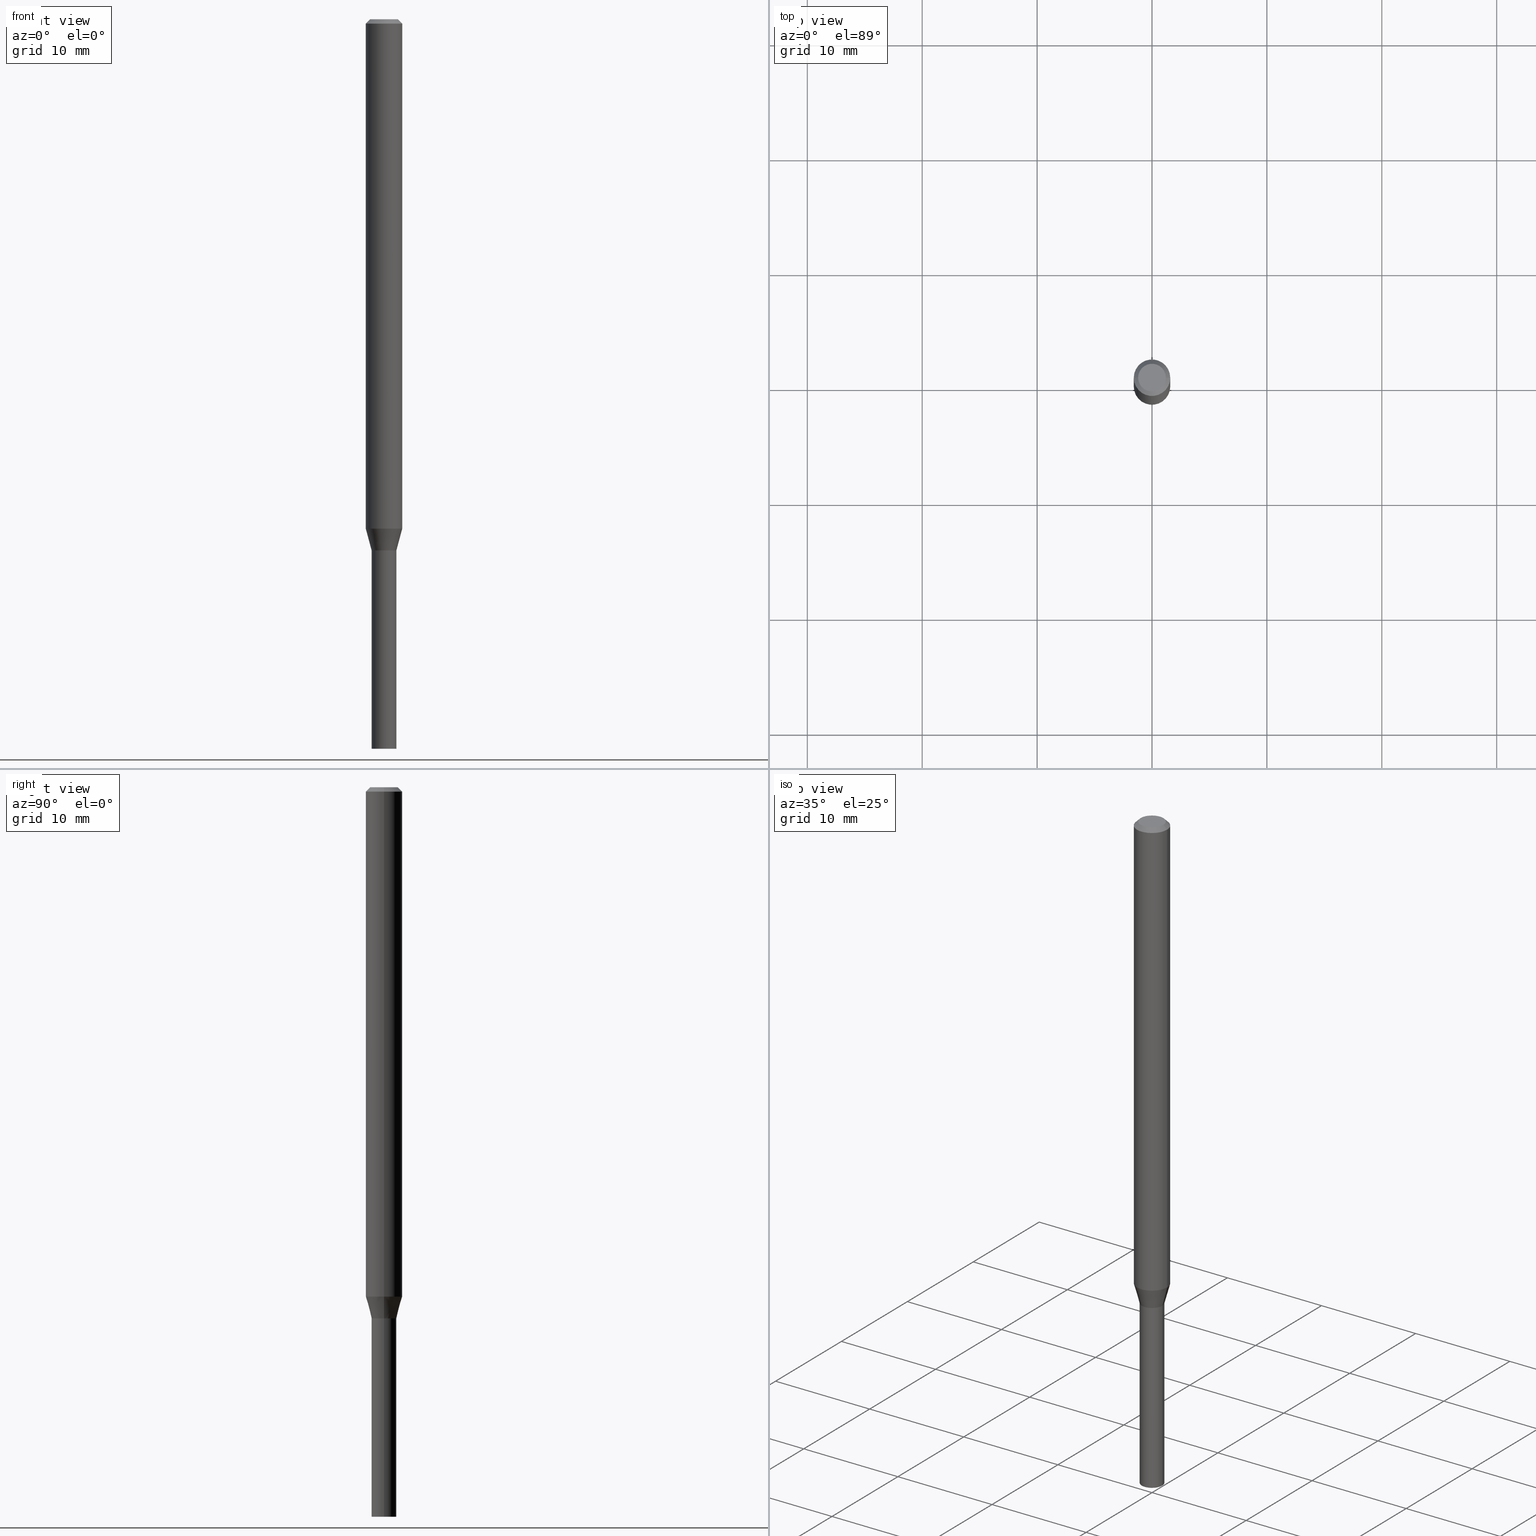
[diagram: canonical four-view strip — front | top / right | iso, engineering-drawing reading convention]
A machine part, canonical four-view strip (front | top / right | iso — engineering-drawing reading convention). The complete STEP part file that produces these views, byte-faithful:
ISO-10303-21;
HEADER;
FILE_DESCRIPTION (( 'STEP AP203' ),
    '1' );
FILE_NAME ('01274.STEP',
    '2024-03-20T00:52:21',
    ( '' ),
    ( '' ),
    'SwSTEP 2.0',
    'SolidWorks 2023',
    '' );
FILE_SCHEMA (( 'CONFIG_CONTROL_DESIGN' ));
ENDSEC;

DATA;
#1 = FACE_OUTER_BOUND ( 'NONE', #41, .T. ) ;
#2 = AXIS2_PLACEMENT_3D ( 'NONE', #100, #132, #173 ) ;
#3 = CARTESIAN_POINT ( 'NONE',  ( -0.04250000000000019734, -6.050769633327060681E-15, -1.819500000000000339 ) ) ;
#4 =( NAMED_UNIT ( * ) SI_UNIT ( $, .STERADIAN. ) SOLID_ANGLE_UNIT ( ) );
#5 = EDGE_LOOP ( 'NONE', ( #101, #324, #272, #439 ) ) ;
#6 = DIRECTION ( 'NONE',  ( 0.7071067811869518049, -2.468850131086492060E-15, 0.7071067811861430075 ) ) ;
#7 = ORIENTED_EDGE ( 'NONE', *, *, #261, .T. ) ;
#8 = DIRECTION ( 'NONE',  ( 1.000000000000000000, -6.982962677686261977E-15, 0.000000000000000000 ) ) ;
#9 = APPROVAL_STATUS ( 'not_yet_approved' ) ;
#10 = ORIENTED_EDGE ( 'NONE', *, *, #379, .T. ) ;
#11 = ADVANCED_FACE ( 'NONE', ( #1 ), #449, .T. ) ;
#12 = PERSON_AND_ORGANIZATION_ROLE ( 'design_owner' ) ;
#13 = ORIENTED_EDGE ( 'NONE', *, *, #396, .F. ) ;
#14 = DIRECTION ( 'NONE',  ( 1.000000000000000000, -6.982962677686261977E-15, 0.000000000000000000 ) ) ;
#15 = CLOSED_SHELL ( 'NONE', ( #17, #309, #450, #195, #435, #401, #11, #341, #67, #429, #276, #226 ) ) ;
#16 = LOCAL_TIME ( 20, 52, 21.00000000000000000, #189 ) ;
#17 = ADVANCED_FACE ( 'NONE', ( #187 ), #322, .F. ) ;
#18 =( CONVERSION_BASED_UNIT ( 'INCH', #335 ) LENGTH_UNIT ( ) NAMED_UNIT ( #305 ) );
#19 = VERTEX_POINT ( 'NONE', #254 ) ;
#20 = AXIS2_PLACEMENT_3D ( 'NONE', #138, #441, #8 ) ;
#21 = DIRECTION ( 'NONE',  ( 1.000000000000000000, -6.982962677686267499E-15, 4.884662768193073002E-29 ) ) ;
#22 = CC_DESIGN_PERSON_AND_ORGANIZATION_ASSIGNMENT ( #286, #12, ( #331 ) ) ;
#23 = AXIS2_PLACEMENT_3D ( 'NONE', #74, #437, #186 ) ;
#24 = CIRCLE ( 'NONE', #351, 0.04249999999999999611 ) ;
#25 = CARTESIAN_POINT ( 'NONE',  ( 4.450753227256949301E-29, -6.354496036694526215E-15, -1.820000000000000284 ) ) ;
#26 = LINE ( 'NONE', #424, #126 ) ;
#27 = LINE ( 'NONE', #326, #164 ) ;
#28 = CIRCLE ( 'NONE', #451, 0.04199999999999999567 ) ;
#29 = CARTESIAN_POINT ( 'NONE',  ( -0.04199999999999999567, -6.053418860501171882E-15, -1.820000000000000062 ) ) ;
#30 = APPROVAL_PERSON_ORGANIZATION ( #38, #330, #77 ) ;
#31 = VERTEX_POINT ( 'NONE', #58 ) ;
#32 = ORIENTED_EDGE ( 'NONE', *, *, #159, .F. ) ;
#33 = EDGE_LOOP ( 'NONE', ( #32, #400, #463, #292 ) ) ;
#34 = FACE_OUTER_BOUND ( 'NONE', #43, .T. ) ;
#35 = FACE_OUTER_BOUND ( 'NONE', #113, .T. ) ;
#36 = VERTEX_POINT ( 'NONE', #163 ) ;
#37 = DIRECTION ( 'NONE',  ( 1.000000000000000000, -6.982962677686267499E-15, 4.884662768193073002E-29 ) ) ;
#38 = PERSON_AND_ORGANIZATION ( #140, #422 ) ;
#39 = AXIS2_PLACEMENT_3D ( 'NONE', #360, #76, #37 ) ;
#40 = AXIS2_PLACEMENT_3D ( 'NONE', #168, #238, #127 ) ;
#41 = EDGE_LOOP ( 'NONE', ( #460, #257, #135, #414 ) ) ;
#42 = DIRECTION ( 'NONE',  ( 1.000000000000000000, -6.982962677686263555E-15, 0.000000000000000000 ) ) ;
#43 = EDGE_LOOP ( 'NONE', ( #448, #357, #152, #288 ) ) ;
#44 = EDGE_CURVE ( 'NONE', #31, #36, #128, .T. ) ;
#45 = ORIENTED_EDGE ( 'NONE', *, *, #421, .T. ) ;
#46 = PERSON_AND_ORGANIZATION ( #140, #422 ) ;
#47 = APPROVAL_DATE_TIME ( #260, #330 ) ;
#48 = EDGE_LOOP ( 'NONE', ( #264, #342, #296, #210 ) ) ;
#49 = AXIS2_PLACEMENT_3D ( 'NONE', #203, #258, #229 ) ;
#50 = ORIENTED_EDGE ( 'NONE', *, *, #75, .T. ) ;
#51 = CARTESIAN_POINT ( 'NONE',  ( 0.06250000000000000000, -4.888073874380388472E-16, -0.01499999999999999944 ) ) ;
#52 = CC_DESIGN_PERSON_AND_ORGANIZATION_ASSIGNMENT ( #46, #409, ( #267 ) ) ;
#53 = CARTESIAN_POINT ( 'NONE',  ( 2.066805758436263276E-45, -2.950850862763961857E-31, -8.451572774957708509E-17 ) ) ;
#54 = FACE_OUTER_BOUND ( 'NONE', #221, .T. ) ;
#55 = DIRECTION ( 'NONE',  ( -2.445468806185136597E-29, 3.491481338843145583E-15, 1.000000000000000000 ) ) ;
#56 = VECTOR ( 'NONE', #397, 39.37007874015748143 ) ;
#57 = LOCAL_TIME ( 20, 52, 21.00000000000000000, #281 ) ;
#58 = CARTESIAN_POINT ( 'NONE',  ( -0.04249999999999999611, -7.239619029203152731E-15, -2.500000000000000000 ) ) ;
#59 = CIRCLE ( 'NONE', #197, 0.04249999999999999611 ) ;
#60 = SECURITY_CLASSIFICATION ( '', '', #81 ) ;
#61 = APPLICATION_CONTEXT ( 'configuration controlled 3d designs of mechanical parts and assemblies' ) ;
#62 = EDGE_CURVE ( 'NONE', #250, #120, #28, .T. ) ;
#63 = DIRECTION ( 'NONE',  ( -1.000000000000000000, 6.982962677686265922E-15, -4.876176775795935793E-29 ) ) ;
#64 = ORIENTED_EDGE ( 'NONE', *, *, #293, .T. ) ;
#65 = CONICAL_SURFACE ( 'NONE', #393, 0.06250000000000000000, 0.7853981633974512766 ) ;
#66 = DIRECTION ( 'NONE',  ( 1.000000000000000000, -6.982962677686276177E-15, 0.000000000000000000 ) ) ;
#67 = ADVANCED_FACE ( 'NONE', ( #464 ), #274, .F. ) ;
#68 = SHAPE_DEFINITION_REPRESENTATION ( #80, #99 ) ;
#69 = MANIFOLD_SOLID_BREP ( 'Body-Move/Copy2[1]', #301 ) ;
#70 = PERSON_AND_ORGANIZATION ( #140, #422 ) ;
#71 = CYLINDRICAL_SURFACE ( 'NONE', #121, 0.06250000000000000000 ) ;
#72 = VERTEX_POINT ( 'NONE', #350 ) ;
#73 = DIRECTION ( 'NONE',  ( -2.445468806185136597E-29, 3.491481338843145583E-15, 1.000000000000000000 ) ) ;
#74 = CARTESIAN_POINT ( 'NONE',  ( 4.268220950596793290E-29, -6.093888321689699445E-15, -1.745358983848622092 ) ) ;
#75 = EDGE_CURVE ( 'NONE', #72, #19, #436, .T. ) ;
#76 = DIRECTION ( 'NONE',  ( -2.445468806185136597E-29, 3.491481338843145583E-15, 1.000000000000000000 ) ) ;
#77 = APPROVAL_ROLE ( '' ) ;
#78 = CARTESIAN_POINT ( 'NONE',  ( -0.06250000000000000000, -2.629041061036111238E-15, -0.01499999999999999944 ) ) ;
#79 = ORIENTED_EDGE ( 'NONE', *, *, #183, .T. ) ;
#80 = PRODUCT_DEFINITION_SHAPE ( 'NONE', 'NONE',  #377 ) ;
#81 = SECURITY_CLASSIFICATION_LEVEL ( 'unclassified' ) ;
#82 = ORIENTED_EDGE ( 'NONE', *, *, #209, .T. ) ;
#83 = COORDINATED_UNIVERSAL_TIME_OFFSET ( 5, 0, .BEHIND. ) ;
#84 = ORIENTED_EDGE ( 'NONE', *, *, #154, .F. ) ;
#85 = LINE ( 'NONE', #415, #198 ) ;
#86 = ORIENTED_EDGE ( 'NONE', *, *, #75, .F. ) ;
#87 = DIRECTION ( 'NONE',  ( -0.7071067811869518049, 7.493145998871813553E-15, 0.7071067811861430075 ) ) ;
#88 = AXIS2_PLACEMENT_3D ( 'NONE', #432, #244, #63 ) ;
#89 = CARTESIAN_POINT ( 'NONE',  ( 3.668203209277705088E-31, -5.237222008264718399E-17, -0.01499999999999999944 ) ) ;
#90 = ADVANCED_FACE ( 'NONE', ( #420 ), #196, .F. ) ;
#91 = DIRECTION ( 'NONE',  ( -2.445468806185136597E-29, 3.491481338843145583E-15, 1.000000000000000000 ) ) ;
#92 = CC_DESIGN_PERSON_AND_ORGANIZATION_ASSIGNMENT ( #220, #399, ( #60 ) ) ;
#93 = CARTESIAN_POINT ( 'NONE',  ( 6.194428952736783458E-29, -8.613054816532157721E-15, -2.500000000000000000 ) ) ;
#94 = CARTESIAN_POINT ( 'NONE',  ( 0.000000000000000000, 0.000000000000000000, 0.000000000000000000 ) ) ;
#95 = DIRECTION ( 'NONE',  ( 1.000000000000000000, -6.982962677686265922E-15, 0.000000000000000000 ) ) ;
#96 = CARTESIAN_POINT ( 'NONE',  ( 0.000000000000000000, 0.000000000000000000, 0.000000000000000000 ) ) ;
#97 = CIRCLE ( 'NONE', #373, 0.04249999999999999611 ) ;
#98 = EDGE_LOOP ( 'NONE', ( #82, #50 ) ) ;
#99 = ADVANCED_BREP_SHAPE_REPRESENTATION ( '01274', ( #69, #235, #320 ), #202 ) ;
#100 = CARTESIAN_POINT ( 'NONE',  ( 4.268220950596793290E-29, -6.093888321689699445E-15, -1.745358983848622092 ) ) ;
#101 = ORIENTED_EDGE ( 'NONE', *, *, #382, .F. ) ;
#102 = CARTESIAN_POINT ( 'NONE',  ( 4.450753227256948741E-29, -6.354496036694524637E-15, -1.820000000000000062 ) ) ;
#103 = CARTESIAN_POINT ( 'NONE',  ( -0.04249999999999993366, 3.019806626980421077E-16, -2.090547413358331706E-30 ) ) ;
#104 = DIRECTION ( 'NONE',  ( -2.445468806185136597E-29, 3.491481338843145583E-15, 1.000000000000000000 ) ) ;
#105 = DATE_TIME_ROLE ( 'classification_date' ) ;
#106 = AXIS2_PLACEMENT_3D ( 'NONE', #89, #153, #297 ) ;
#107 = EDGE_LOOP ( 'NONE', ( #317, #79 ) ) ;
#108 = DIRECTION ( 'NONE',  ( 2.438088387897960049E-29, -3.491481338843145188E-15, -1.000000000000000000 ) ) ;
#109 = DATE_AND_TIME ( #411, #445 ) ;
#110 = DIRECTION ( 'NONE',  ( -2.445468806185136597E-29, 3.491481338843145583E-15, 1.000000000000000000 ) ) ;
#111 = DIRECTION ( 'NONE',  ( 1.000000000000000000, -6.982962677686265922E-15, 0.000000000000000000 ) ) ;
#112 = EDGE_CURVE ( 'NONE', #177, #446, #427, .T. ) ;
#113 = EDGE_LOOP ( 'NONE', ( #178, #212, #190, #7 ) ) ;
#114 = EDGE_CURVE ( 'NONE', #273, #208, #269, .T. ) ;
#115 = DATE_TIME_ROLE ( 'creation_date' ) ;
#116 = AXIS2_PLACEMENT_3D ( 'NONE', #53, #91, #21 ) ;
#117 = CALENDAR_DATE ( 2024, 19, 3 ) ;
#118 = CARTESIAN_POINT ( 'NONE',  ( 3.668203209277705088E-31, -5.237222008264718399E-17, -0.01499999999999999944 ) ) ;
#119 = ORIENTED_EDGE ( 'NONE', *, *, #200, .F. ) ;
#120 = VERTEX_POINT ( 'NONE', #29 ) ;
#121 = AXIS2_PLACEMENT_3D ( 'NONE', #362, #245, #211 ) ;
#122 = CC_DESIGN_APPROVAL ( #371, ( #267 ) ) ;
#123 = CC_DESIGN_PERSON_AND_ORGANIZATION_ASSIGNMENT ( #332, #247, ( #267 ) ) ;
#124 = CIRCLE ( 'NONE', #201, 0.04250000000000019734 ) ;
#125 = DIRECTION ( 'NONE',  ( 1.000000000000000000, -6.982962677686267499E-15, 4.876176775795935793E-29 ) ) ;
#126 = VECTOR ( 'NONE', #162, 39.37007874015748143 ) ;
#127 = DIRECTION ( 'NONE',  ( 1.000000000000000000, -6.982962677686266711E-15, 0.000000000000000000 ) ) ;
#128 = CIRCLE ( 'NONE', #349, 0.04249999999999999611 ) ;
#129 = DIRECTION ( 'NONE',  ( 1.000000000000000000, -6.982962677686265922E-15, 4.876176775795935793E-29 ) ) ;
#130 = EDGE_LOOP ( 'NONE', ( #86, #204, #45, #352 ) ) ;
#131 = VERTEX_POINT ( 'NONE', #175 ) ;
#132 = DIRECTION ( 'NONE',  ( -2.445468806185136597E-29, 3.491481338843145583E-15, 1.000000000000000000 ) ) ;
#133 = EDGE_CURVE ( 'NONE', #215, #395, #124, .T. ) ;
#134 = CALENDAR_DATE ( 2024, 19, 3 ) ;
#135 = ORIENTED_EDGE ( 'NONE', *, *, #298, .T. ) ;
#136 = FACE_OUTER_BOUND ( 'NONE', #107, .T. ) ;
#137 = PERSON_AND_ORGANIZATION ( #140, #422 ) ;
#138 = CARTESIAN_POINT ( 'NONE',  ( 4.450753227256949301E-29, -6.354496036694526215E-15, -1.820000000000000284 ) ) ;
#139 = CONICAL_SURFACE ( 'NONE', #49, 0.06250000000000000000, 0.7853981633974512766 ) ;
#140 = PERSON ( 'UNSPECIFIED', 'UNSPECIFIED', 'UNSPECIFIED', ('UNSPECIFIED'), ('UNSPECIFIED'), ('UNSPECIFIED') ) ;
#141 = ORIENTED_EDGE ( 'NONE', *, *, #159, .T. ) ;
#142 = DIRECTION ( 'NONE',  ( 0.7071067811865496822, -7.319954787623263934E-15, -0.7071067811865454633 ) ) ;
#143 = CARTESIAN_POINT ( 'NONE',  ( 0.000000000000000000, 0.000000000000000000, 0.000000000000000000 ) ) ;
#144 = DIRECTION ( 'NONE',  ( -1.000000000000000000, 6.982962677686266711E-15, 0.000000000000000000 ) ) ;
#145 = ORIENTED_EDGE ( 'NONE', *, *, #62, .F. ) ;
#146 = CC_DESIGN_PERSON_AND_ORGANIZATION_ASSIGNMENT ( #137, #434, ( #377 ) ) ;
#147 = LINE ( 'NONE', #405, #241 ) ;
#148 = CARTESIAN_POINT ( 'NONE',  ( 4.450753227256949301E-29, -6.354496036694526215E-15, -1.820000000000000284 ) ) ;
#149 = DIRECTION ( 'NONE',  ( 1.000000000000000000, -6.982962677686266711E-15, 4.876176775795935232E-29 ) ) ;
#150 = APPROVAL_ROLE ( '' ) ;
#151 = MECHANICAL_CONTEXT ( 'NONE', #237, 'mechanical' ) ;
#152 = ORIENTED_EDGE ( 'NONE', *, *, #421, .F. ) ;
#153 = DIRECTION ( 'NONE',  ( -2.445468806185136597E-29, 3.491481338843145583E-15, 1.000000000000000000 ) ) ;
#154 = EDGE_CURVE ( 'NONE', #327, #177, #224, .T. ) ;
#155 = LINE ( 'NONE', #263, #255 ) ;
#156 = CARTESIAN_POINT ( 'NONE',  ( 4.450753227256949301E-29, -6.354496036694526215E-15, -1.820000000000000284 ) ) ;
#157 = DIRECTION ( 'NONE',  ( -2.445468806185136597E-29, 3.491481338843145583E-15, 1.000000000000000000 ) ) ;
#158 = CIRCLE ( 'NONE', #252, 0.04199999999999999567 ) ;
#159 = EDGE_CURVE ( 'NONE', #208, #177, #27, .T. ) ;
#160 = CARTESIAN_POINT ( 'NONE',  ( 0.04249999999999966305, -6.651271950496189710E-15, -1.820000000000000284 ) ) ;
#161 = CIRCLE ( 'NONE', #40, 0.06250000000000000000 ) ;
#162 = DIRECTION ( 'NONE',  ( -2.445468806185136877E-29, 3.491481338843145188E-15, 1.000000000000000000 ) ) ;
#163 = CARTESIAN_POINT ( 'NONE',  ( 0.04249999999999999611, -9.025479260909530016E-15, -2.500000000000000000 ) ) ;
#164 = VECTOR ( 'NONE', #277, 39.37007874015748854 ) ;
#165 = FACE_OUTER_BOUND ( 'NONE', #48, .T. ) ;
#166 = CARTESIAN_POINT ( 'NONE',  ( 4.450753227256948741E-29, -6.354496036694524637E-15, -1.820000000000000062 ) ) ;
#167 = DIRECTION ( 'NONE',  ( -2.445468806185136597E-29, 3.491481338843145583E-15, 1.000000000000000000 ) ) ;
#168 = CARTESIAN_POINT ( 'NONE',  ( 3.668203209277705088E-31, -5.237222008264718399E-17, -0.01499999999999999944 ) ) ;
#169 = DIRECTION ( 'NONE',  ( 1.000000000000000000, -6.982962677686265922E-15, 4.876176775795935793E-29 ) ) ;
#170 = CARTESIAN_POINT ( 'NONE',  ( -0.06250000000000000000, 4.440892098500626162E-16, -3.074334431409316114E-30 ) ) ;
#171 = EDGE_CURVE ( 'NONE', #177, #327, #283, .T. ) ;
#172 = AXIS2_PLACEMENT_3D ( 'NONE', #287, #279, #111 ) ;
#173 = DIRECTION ( 'NONE',  ( 1.000000000000000000, -6.982962677686262766E-15, 0.000000000000000000 ) ) ;
#174 = CONICAL_SURFACE ( 'NONE', #275, 0.04249999999999966305, 0.2617993877991515728 ) ;
#175 = CARTESIAN_POINT ( 'NONE',  ( 0.04249999999999999611, -6.651271950496192865E-15, -1.820000000000000284 ) ) ;
#176 = EDGE_CURVE ( 'NONE', #208, #215, #433, .T. ) ;
#177 = VERTEX_POINT ( 'NONE', #251 ) ;
#178 = ORIENTED_EDGE ( 'NONE', *, *, #176, .F. ) ;
#179 = CYLINDRICAL_SURFACE ( 'NONE', #364, 0.04249999999999993366 ) ;
#180 = ORIENTED_EDGE ( 'NONE', *, *, #44, .F. ) ;
#181 = CARTESIAN_POINT ( 'NONE',  ( 0.000000000000000000, 0.000000000000000000, 0.000000000000000000 ) ) ;
#182 = CONICAL_SURFACE ( 'NONE', #225, 0.04199999999999999567, 0.7853981633980202659 ) ;
#183 = EDGE_CURVE ( 'NONE', #358, #131, #59, .T. ) ;
#184 = ORIENTED_EDGE ( 'NONE', *, *, #253, .F. ) ;
#185 = DIRECTION ( 'NONE',  ( 1.000000000000000000, -6.982962677686263555E-15, 0.000000000000000000 ) ) ;
#186 = DIRECTION ( 'NONE',  ( 1.000000000000000000, -6.982962677686262766E-15, 0.000000000000000000 ) ) ;
#187 = FACE_OUTER_BOUND ( 'NONE', #447, .T. ) ;
#188 = COORDINATED_UNIVERSAL_TIME_OFFSET ( 5, 0, .BEHIND. ) ;
#189 = COORDINATED_UNIVERSAL_TIME_OFFSET ( 5, 0, .BEHIND. ) ;
#190 = ORIENTED_EDGE ( 'NONE', *, *, #340, .T. ) ;
#191 = CARTESIAN_POINT ( 'NONE',  ( 0.000000000000000000, 0.000000000000000000, 0.000000000000000000 ) ) ;
#192 = CC_DESIGN_SECURITY_CLASSIFICATION ( #60, ( #267 ) ) ;
#193 = EDGE_LOOP ( 'NONE', ( #119, #389, #10, #431 ) ) ;
#194 = ORIENTED_EDGE ( 'NONE', *, *, #44, .T. ) ;
#195 = ADVANCED_FACE ( 'NONE', ( #34 ), #71, .T. ) ;
#196 = PLANE ( 'NONE',  #265 ) ;
#197 = AXIS2_PLACEMENT_3D ( 'NONE', #148, #110, #66 ) ;
#198 = VECTOR ( 'NONE', #87, 39.37007874015748854 ) ;
#199 = DIRECTION ( 'NONE',  ( 1.000000000000000000, -6.982962677686276177E-15, 0.000000000000000000 ) ) ;
#200 = EDGE_CURVE ( 'NONE', #72, #392, #440, .T. ) ;
#201 = AXIS2_PLACEMENT_3D ( 'NONE', #232, #307, #95 ) ;
#202 =( GEOMETRIC_REPRESENTATION_CONTEXT ( 3 ) GLOBAL_UNCERTAINTY_ASSIGNED_CONTEXT ( ( #339 ) ) GLOBAL_UNIT_ASSIGNED_CONTEXT ( ( #18, #381, #4 ) ) REPRESENTATION_CONTEXT ( 'NONE', 'WORKASPACE' ) );
#203 = CARTESIAN_POINT ( 'NONE',  ( 3.668203209277705088E-31, -5.237222008264718399E-17, -0.01499999999999999944 ) ) ;
#204 = ORIENTED_EDGE ( 'NONE', *, *, #200, .T. ) ;
#205 = LINE ( 'NONE', #242, #284 ) ;
#206 = VECTOR ( 'NONE', #388, 39.37007874015748143 ) ;
#207 = APPROVAL_PERSON_ORGANIZATION ( #70, #371, #256 ) ;
#208 = VERTEX_POINT ( 'NONE', #402 ) ;
#209 = EDGE_CURVE ( 'NONE', #19, #72, #383, .T. ) ;
#210 = ORIENTED_EDGE ( 'NONE', *, *, #280, .F. ) ;
#211 = DIRECTION ( 'NONE',  ( 1.000000000000000000, -6.982962677686266711E-15, 4.876176775795935793E-29 ) ) ;
#212 = ORIENTED_EDGE ( 'NONE', *, *, #114, .F. ) ;
#213 = DIRECTION ( 'NONE',  ( 1.000000000000000000, -6.982962677686263555E-15, 0.000000000000000000 ) ) ;
#214 = DIRECTION ( 'NONE',  ( 1.000000000000000000, 0.000000000000000000, 0.000000000000000000 ) ) ;
#215 = VERTEX_POINT ( 'NONE', #3 ) ;
#216 = ORIENTED_EDGE ( 'NONE', *, *, #293, .F. ) ;
#217 = DIRECTION ( 'NONE',  ( -2.445468806185136597E-29, 3.491481338843145583E-15, 1.000000000000000000 ) ) ;
#218 = VECTOR ( 'NONE', #303, 39.37007874015748854 ) ;
#219 = ORIENTED_EDGE ( 'NONE', *, *, #461, .F. ) ;
#220 = PERSON_AND_ORGANIZATION ( #140, #422 ) ;
#221 = EDGE_LOOP ( 'NONE', ( #366, #426, #390, #216 ) ) ;
#222 = DATE_AND_TIME ( #290, #459 ) ;
#223 = ORIENTED_EDGE ( 'NONE', *, *, #133, .T. ) ;
#224 = CIRCLE ( 'NONE', #23, 0.06250000000000000000 ) ;
#225 = AXIS2_PLACEMENT_3D ( 'NONE', #271, #167, #418 ) ;
#226 = ADVANCED_FACE ( 'NONE', ( #35 ), #179, .F. ) ;
#227 = LINE ( 'NONE', #160, #218 ) ;
#228 = EDGE_CURVE ( 'NONE', #120, #250, #158, .T. ) ;
#229 = DIRECTION ( 'NONE',  ( -1.000000000000000000, 6.982962677686266711E-15, 0.000000000000000000 ) ) ;
#230 = DIRECTION ( 'NONE',  ( -2.438088387897960049E-29, 3.491481338843145188E-15, 1.000000000000000000 ) ) ;
#231 = LOCAL_TIME ( 20, 52, 21.00000000000000000, #188 ) ;
#232 = CARTESIAN_POINT ( 'NONE',  ( 4.449530492853856500E-29, -6.352750296025104711E-15, -1.819500000000000339 ) ) ;
#233 = DIRECTION ( 'NONE',  ( 1.000000000000000000, -6.982962677686267499E-15, 4.876176775795935793E-29 ) ) ;
#234 = FACE_OUTER_BOUND ( 'NONE', #356, .T. ) ;
#235 = MANIFOLD_SOLID_BREP ( 'Body-Move/Copy2[2]', #15 ) ;
#236 = ADVANCED_FACE ( 'NONE', ( #136 ), #285, .F. ) ;
#237 = APPLICATION_CONTEXT ( 'configuration controlled 3d designs of mechanical parts and assemblies' ) ;
#238 = DIRECTION ( 'NONE',  ( -2.445468806185136597E-29, 3.491481338843145583E-15, 1.000000000000000000 ) ) ;
#239 = DIRECTION ( 'NONE',  ( -2.445468806185136597E-29, 3.491481338843145583E-15, 1.000000000000000000 ) ) ;
#240 = AXIS2_PLACEMENT_3D ( 'NONE', #430, #458, #348 ) ;
#241 = VECTOR ( 'NONE', #347, 39.37007874015748143 ) ;
#242 = CARTESIAN_POINT ( 'NONE',  ( 0.04249999999999993366, -2.967759138016658619E-16, 2.072375129713269349E-30 ) ) ;
#243 = PLANE ( 'NONE',  #319 ) ;
#244 = DIRECTION ( 'NONE',  ( 2.438088387897960049E-29, -3.491481338843145188E-15, -1.000000000000000000 ) ) ;
#245 = DIRECTION ( 'NONE',  ( -2.445468806185136597E-29, 3.491481338843145583E-15, 1.000000000000000000 ) ) ;
#246 = DIRECTION ( 'NONE',  ( -1.000000000000000000, 6.982962677686265922E-15, -4.876176775795935793E-29 ) ) ;
#247 = PERSON_AND_ORGANIZATION_ROLE ( 'creator' ) ;
#248 = FACE_OUTER_BOUND ( 'NONE', #5, .T. ) ;
#249 = APPLICATION_PROTOCOL_DEFINITION ( 'international standard', 'config_control_design', 1994, #237 ) ;
#250 = VERTEX_POINT ( 'NONE', #314 ) ;
#251 = CARTESIAN_POINT ( 'NONE',  ( -0.06250000000000000000, -5.649799111839637618E-15, -1.745358983848622092 ) ) ;
#252 = AXIS2_PLACEMENT_3D ( 'NONE', #289, #316, #213 ) ;
#253 = EDGE_CURVE ( 'NONE', #31, #358, #462, .T. ) ;
#254 = CARTESIAN_POINT ( 'NONE',  ( -0.04749999999999999362, 3.578768372314209027E-16, -8.451572774957950098E-17 ) ) ;
#255 = VECTOR ( 'NONE', #413, 39.37007874015748143 ) ;
#256 = APPROVAL_ROLE ( '' ) ;
#257 = ORIENTED_EDGE ( 'NONE', *, *, #171, .T. ) ;
#258 = DIRECTION ( 'NONE',  ( 2.445468806185136597E-29, -3.491481338843145583E-15, -1.000000000000000000 ) ) ;
#259 = ORIENTED_EDGE ( 'NONE', *, *, #114, .T. ) ;
#260 = DATE_AND_TIME ( #134, #16 ) ;
#261 = EDGE_CURVE ( 'NONE', #395, #215, #375, .T. ) ;
#262 = FACE_OUTER_BOUND ( 'NONE', #363, .T. ) ;
#263 = CARTESIAN_POINT ( 'NONE',  ( -0.06250000000000000000, 3.840629472727444916E-16, -0.01499999999999999944 ) ) ;
#264 = ORIENTED_EDGE ( 'NONE', *, *, #62, .T. ) ;
#265 = AXIS2_PLACEMENT_3D ( 'NONE', #93, #230, #169 ) ;
#266 = VECTOR ( 'NONE', #407, 39.37007874015748143 ) ;
#267 = PRODUCT_DEFINITION_FORMATION_WITH_SPECIFIED_SOURCE ( 'ANY', '', #331, .NOT_KNOWN. ) ;
#268 =( LENGTH_UNIT ( ) NAMED_UNIT ( * ) SI_UNIT ( $, .METRE. ) );
#269 = CIRCLE ( 'NONE', #240, 0.04249999999999966305 ) ;
#270 = CC_DESIGN_APPROVAL ( #330, ( #60 ) ) ;
#271 = CARTESIAN_POINT ( 'NONE',  ( 4.450753227256948741E-29, -6.354496036694524637E-15, -1.820000000000000062 ) ) ;
#272 = ORIENTED_EDGE ( 'NONE', *, *, #280, .T. ) ;
#273 = VERTEX_POINT ( 'NONE', #354 ) ;
#274 = PLANE ( 'NONE',  #88 ) ;
#275 = AXIS2_PLACEMENT_3D ( 'NONE', #25, #384, #346 ) ;
#276 = ADVANCED_FACE ( 'NONE', ( #248 ), #294, .T. ) ;
#277 = DIRECTION ( 'NONE',  ( -0.2588190451025227934, 5.211531920934558141E-15, 0.9659258262890676461 ) ) ;
#278 = FACE_OUTER_BOUND ( 'NONE', #300, .T. ) ;
#279 = DIRECTION ( 'NONE',  ( -2.445468806185136597E-29, 3.491481338843145583E-15, 1.000000000000000000 ) ) ;
#280 = EDGE_CURVE ( 'NONE', #250, #395, #312, .T. ) ;
#281 = COORDINATED_UNIVERSAL_TIME_OFFSET ( 5, 0, .BEHIND. ) ;
#282 = APPROVAL ( #394, 'UNSPECIFIED' ) ;
#283 = CIRCLE ( 'NONE', #2, 0.06250000000000000000 ) ;
#284 = VECTOR ( 'NONE', #386, 39.37007874015748143 ) ;
#285 = PLANE ( 'NONE',  #404 ) ;
#286 = PERSON_AND_ORGANIZATION ( #140, #422 ) ;
#287 = CARTESIAN_POINT ( 'NONE',  ( 4.449530492853856500E-29, -6.352750296025104711E-15, -1.819500000000000339 ) ) ;
#288 = ORIENTED_EDGE ( 'NONE', *, *, #298, .F. ) ;
#289 = CARTESIAN_POINT ( 'NONE',  ( 4.450753227256948741E-29, -6.354496036694524637E-15, -1.820000000000000062 ) ) ;
#290 = CALENDAR_DATE ( 2024, 19, 3 ) ;
#291 = CYLINDRICAL_SURFACE ( 'NONE', #302, 0.04249999999999999611 ) ;
#292 = ORIENTED_EDGE ( 'NONE', *, *, #171, .F. ) ;
#293 = EDGE_CURVE ( 'NONE', #36, #131, #147, .T. ) ;
#294 = CONICAL_SURFACE ( 'NONE', #311, 0.04199999999999999567, 0.7853981633980202659 ) ;
#295 = PERSON_AND_ORGANIZATION ( #140, #422 ) ;
#296 = ORIENTED_EDGE ( 'NONE', *, *, #261, .F. ) ;
#297 = DIRECTION ( 'NONE',  ( 1.000000000000000000, -6.982962677686266711E-15, 0.000000000000000000 ) ) ;
#298 = EDGE_CURVE ( 'NONE', #327, #392, #26, .T. ) ;
#299 = ORIENTED_EDGE ( 'NONE', *, *, #340, .F. ) ;
#300 = EDGE_LOOP ( 'NONE', ( #259, #141, #84, #219 ) ) ;
#301 = CLOSED_SHELL ( 'NONE', ( #308, #90, #453, #236 ) ) ;
#302 = AXIS2_PLACEMENT_3D ( 'NONE', #96, #157, #233 ) ;
#303 = DIRECTION ( 'NONE',  ( 0.2588190451025227934, 1.565188264969610135E-15, 0.9659258262890676461 ) ) ;
#304 = PRODUCT_RELATED_PRODUCT_CATEGORY ( 'detail', '', ( #331 ) ) ;
#305 = DIMENSIONAL_EXPONENTS ( 1.000000000000000000, 0.000000000000000000, 0.000000000000000000, 0.000000000000000000, 0.000000000000000000, 0.000000000000000000, 0.000000000000000000 ) ;
#306 = CONICAL_SURFACE ( 'NONE', #20, 0.04249999999999966305, 0.2617993877991515728 ) ;
#307 = DIRECTION ( 'NONE',  ( -2.445468806185136597E-29, 3.491481338843145583E-15, 1.000000000000000000 ) ) ;
#308 = ADVANCED_FACE ( 'NONE', ( #54 ), #343, .T. ) ;
#309 = ADVANCED_FACE ( 'NONE', ( #165 ), #182, .T. ) ;
#310 = DIRECTION ( 'NONE',  ( -2.438088387897960049E-29, 3.491481338843145188E-15, 1.000000000000000000 ) ) ;
#311 = AXIS2_PLACEMENT_3D ( 'NONE', #102, #73, #42 ) ;
#312 = LINE ( 'NONE', #325, #417 ) ;
#313 = ORIENTED_EDGE ( 'NONE', *, *, #228, .F. ) ;
#314 = CARTESIAN_POINT ( 'NONE',  ( 0.04199999999999999567, -6.647780469157348281E-15, -1.820000000000000062 ) ) ;
#315 = ORIENTED_EDGE ( 'NONE', *, *, #176, .T. ) ;
#316 = DIRECTION ( 'NONE',  ( -2.445468806185136597E-29, 3.491481338843145583E-15, 1.000000000000000000 ) ) ;
#317 = ORIENTED_EDGE ( 'NONE', *, *, #454, .T. ) ;
#318 = VECTOR ( 'NONE', #142, 39.37007874015748143 ) ;
#319 = AXIS2_PLACEMENT_3D ( 'NONE', #387, #310, #129 ) ;
#320 = AXIS2_PLACEMENT_3D ( 'NONE', #191, #367, #214 ) ;
#321 = DIRECTION ( 'NONE',  ( 1.000000000000000000, -6.982962677686266711E-15, 4.876176775795935232E-29 ) ) ;
#322 = CYLINDRICAL_SURFACE ( 'NONE', #416, 0.04249999999999993366 ) ;
#323 = COORDINATED_UNIVERSAL_TIME_OFFSET ( 5, 0, .BEHIND. ) ;
#324 = ORIENTED_EDGE ( 'NONE', *, *, #228, .T. ) ;
#325 = CARTESIAN_POINT ( 'NONE',  ( 0.04199999999999999567, -6.647780469157348281E-15, -1.820000000000000062 ) ) ;
#326 = CARTESIAN_POINT ( 'NONE',  ( -0.04249999999999966305, -6.052515373996486128E-15, -1.820000000000000284 ) ) ;
#327 = VERTEX_POINT ( 'NONE', #425 ) ;
#328 = DIRECTION ( 'NONE',  ( -2.445468806185136597E-29, 3.491481338843145583E-15, 1.000000000000000000 ) ) ;
#329 = DATE_AND_TIME ( #117, #231 ) ;
#330 = APPROVAL ( #403, 'UNSPECIFIED' ) ;
#331 = PRODUCT ( '01274', '01274', '', ( #151 ) ) ;
#332 = PERSON_AND_ORGANIZATION ( #140, #422 ) ;
#333 = DIRECTION ( 'NONE',  ( -2.445468806185136597E-29, 3.491481338843145583E-15, 1.000000000000000000 ) ) ;
#334 = CARTESIAN_POINT ( 'NONE',  ( 0.04250000000000019734, -6.649526209826772151E-15, -1.819500000000000339 ) ) ;
#335 = LENGTH_MEASURE_WITH_UNIT ( LENGTH_MEASURE( 0.02539999999999999897 ), #268 );
#336 = ORIENTED_EDGE ( 'NONE', *, *, #359, .F. ) ;
#337 = CARTESIAN_POINT ( 'NONE',  ( 0.000000000000000000, 0.000000000000000000, 0.000000000000000000 ) ) ;
#338 = DIRECTION ( 'NONE',  ( 2.445468806185136597E-29, -3.491481338843145583E-15, -1.000000000000000000 ) ) ;
#339 = UNCERTAINTY_MEASURE_WITH_UNIT (LENGTH_MEASURE( 1.000000000000000082E-05 ), #18, 'distance_accuracy_value', 'NONE');
#340 = EDGE_CURVE ( 'NONE', #273, #395, #205, .T. ) ;
#341 = ADVANCED_FACE ( 'NONE', ( #457 ), #139, .T. ) ;
#342 = ORIENTED_EDGE ( 'NONE', *, *, #382, .T. ) ;
#343 = CYLINDRICAL_SURFACE ( 'NONE', #428, 0.04249999999999999611 ) ;
#344 = DIRECTION ( 'NONE',  ( -2.445468806185136597E-29, 3.491481338843145583E-15, 1.000000000000000000 ) ) ;
#345 = APPROVAL_PERSON_ORGANIZATION ( #295, #282, #150 ) ;
#346 = DIRECTION ( 'NONE',  ( 1.000000000000000000, -6.982962677686261977E-15, 0.000000000000000000 ) ) ;
#347 = DIRECTION ( 'NONE',  ( -2.445468806185136877E-29, 3.491481338843145188E-15, 1.000000000000000000 ) ) ;
#348 = DIRECTION ( 'NONE',  ( 1.000000000000000000, -6.982962677686261977E-15, 0.000000000000000000 ) ) ;
#349 = AXIS2_PLACEMENT_3D ( 'NONE', #423, #239, #380 ) ;
#350 = CARTESIAN_POINT ( 'NONE',  ( 0.04749999999999999362, -4.035134999187580102E-16, -8.451572774957450897E-17 ) ) ;
#351 = AXIS2_PLACEMENT_3D ( 'NONE', #465, #344, #456 ) ;
#352 = ORIENTED_EDGE ( 'NONE', *, *, #379, .F. ) ;
#353 = CC_DESIGN_DATE_AND_TIME_ASSIGNMENT ( #329, #115, ( #377 ) ) ;
#354 = CARTESIAN_POINT ( 'NONE',  ( 0.04249999999999966305, -6.651271950496189710E-15, -1.820000000000000284 ) ) ;
#355 = CARTESIAN_POINT ( 'NONE',  ( -0.04249999999999999611, 3.019806626980425514E-16, -2.090547413358334859E-30 ) ) ;
#356 = EDGE_LOOP ( 'NONE', ( #145, #313 ) ) ;
#357 = ORIENTED_EDGE ( 'NONE', *, *, #112, .T. ) ;
#358 = VERTEX_POINT ( 'NONE', #369 ) ;
#359 = EDGE_CURVE ( 'NONE', #208, #273, #452, .T. ) ;
#360 = CARTESIAN_POINT ( 'NONE',  ( 2.066805758436263276E-45, -2.950850862763961857E-31, -8.451572774957708509E-17 ) ) ;
#361 = DATE_AND_TIME ( #442, #57 ) ;
#362 = CARTESIAN_POINT ( 'NONE',  ( 0.000000000000000000, 0.000000000000000000, 0.000000000000000000 ) ) ;
#363 = EDGE_LOOP ( 'NONE', ( #184, #194, #64, #410 ) ) ;
#364 = AXIS2_PLACEMENT_3D ( 'NONE', #181, #217, #321 ) ;
#365 = EDGE_CURVE ( 'NONE', #446, #392, #385, .T. ) ;
#366 = ORIENTED_EDGE ( 'NONE', *, *, #396, .T. ) ;
#367 = DIRECTION ( 'NONE',  ( 0.000000000000000000, 0.000000000000000000, 1.000000000000000000 ) ) ;
#368 = FACE_OUTER_BOUND ( 'NONE', #130, .T. ) ;
#369 = CARTESIAN_POINT ( 'NONE',  ( -0.04249999999999999611, -7.239619029203152731E-15, -1.820000000000000284 ) ) ;
#370 = APPROVAL_DATE_TIME ( #222, #371 ) ;
#371 = APPROVAL ( #9, 'UNSPECIFIED' ) ;
#372 = AXIS2_PLACEMENT_3D ( 'NONE', #337, #443, #408 ) ;
#373 = AXIS2_PLACEMENT_3D ( 'NONE', #374, #55, #199 ) ;
#374 = CARTESIAN_POINT ( 'NONE',  ( 4.450753227256949301E-29, -6.354496036694526215E-15, -1.820000000000000284 ) ) ;
#375 = CIRCLE ( 'NONE', #172, 0.04250000000000019734 ) ;
#376 = AXIS2_PLACEMENT_3D ( 'NONE', #156, #333, #14 ) ;
#377 = PRODUCT_DEFINITION ( 'UNKNOWN', '', #267, #419 ) ;
#378 = DIRECTION ( 'NONE',  ( -2.445468806185136597E-29, 3.491481338843145583E-15, 1.000000000000000000 ) ) ;
#379 = EDGE_CURVE ( 'NONE', #19, #446, #155, .T. ) ;
#380 = DIRECTION ( 'NONE',  ( 1.000000000000000000, -6.982962677686254089E-15, 0.000000000000000000 ) ) ;
#381 =( NAMED_UNIT ( * ) PLANE_ANGLE_UNIT ( ) SI_UNIT ( $, .RADIAN. ) );
#382 = EDGE_CURVE ( 'NONE', #120, #215, #85, .T. ) ;
#383 = CIRCLE ( 'NONE', #39, 0.04749999999999999362 ) ;
#384 = DIRECTION ( 'NONE',  ( -2.445468806185136597E-29, 3.491481338843145583E-15, 1.000000000000000000 ) ) ;
#385 = CIRCLE ( 'NONE', #106, 0.06250000000000000000 ) ;
#386 = DIRECTION ( 'NONE',  ( -2.445468806185136877E-29, 3.491481338843145188E-15, 1.000000000000000000 ) ) ;
#387 = CARTESIAN_POINT ( 'NONE',  ( 4.450753227256949301E-29, -6.354496036694526215E-15, -1.820000000000000284 ) ) ;
#388 = DIRECTION ( 'NONE',  ( -2.445468806185136877E-29, 3.491481338843145188E-15, 1.000000000000000000 ) ) ;
#389 = ORIENTED_EDGE ( 'NONE', *, *, #209, .F. ) ;
#390 = ORIENTED_EDGE ( 'NONE', *, *, #454, .F. ) ;
#391 = CC_DESIGN_DATE_AND_TIME_ASSIGNMENT ( #361, #105, ( #60 ) ) ;
#392 = VERTEX_POINT ( 'NONE', #51 ) ;
#393 = AXIS2_PLACEMENT_3D ( 'NONE', #118, #338, #144 ) ;
#394 = APPROVAL_STATUS ( 'not_yet_approved' ) ;
#395 = VERTEX_POINT ( 'NONE', #334 ) ;
#396 = EDGE_CURVE ( 'NONE', #36, #31, #24, .T. ) ;
#397 = DIRECTION ( 'NONE',  ( -2.445468806185136877E-29, 3.491481338843145188E-15, 1.000000000000000000 ) ) ;
#398 = CARTESIAN_POINT ( 'NONE',  ( 0.06250000000000000000, -4.811533449433679005E-16, -0.01499999999999999944 ) ) ;
#399 = PERSON_AND_ORGANIZATION_ROLE ( 'classification_officer' ) ;
#400 = ORIENTED_EDGE ( 'NONE', *, *, #359, .T. ) ;
#401 = ADVANCED_FACE ( 'NONE', ( #455 ), #174, .T. ) ;
#402 = CARTESIAN_POINT ( 'NONE',  ( -0.04249999999999966305, -5.851157242918061873E-15, -1.820000000000000284 ) ) ;
#403 = APPROVAL_STATUS ( 'not_yet_approved' ) ;
#404 = AXIS2_PLACEMENT_3D ( 'NONE', #438, #108, #246 ) ;
#405 = CARTESIAN_POINT ( 'NONE',  ( 0.04249999999999999611, -2.967759138016663549E-16, 2.072375129713272502E-30 ) ) ;
#406 = CC_DESIGN_APPROVAL ( #282, ( #377 ) ) ;
#407 = DIRECTION ( 'NONE',  ( -2.445468806185136877E-29, 3.491481338843145188E-15, 1.000000000000000000 ) ) ;
#408 = DIRECTION ( 'NONE',  ( 1.000000000000000000, -6.982962677686266711E-15, 4.876176775795935793E-29 ) ) ;
#409 = PERSON_AND_ORGANIZATION_ROLE ( 'design_supplier' ) ;
#410 = ORIENTED_EDGE ( 'NONE', *, *, #183, .F. ) ;
#411 = CALENDAR_DATE ( 2024, 19, 3 ) ;
#412 = EDGE_LOOP ( 'NONE', ( #13, #180 ) ) ;
#413 = DIRECTION ( 'NONE',  ( -0.7071067811865496822, 2.468850131082278754E-15, -0.7071067811865454633 ) ) ;
#414 = ORIENTED_EDGE ( 'NONE', *, *, #365, .F. ) ;
#415 = CARTESIAN_POINT ( 'NONE',  ( -0.04199999999999999567, -6.056068087675283083E-15, -1.820000000000000062 ) ) ;
#416 = AXIS2_PLACEMENT_3D ( 'NONE', #143, #328, #149 ) ;
#417 = VECTOR ( 'NONE', #6, 39.37007874015748854 ) ;
#418 = DIRECTION ( 'NONE',  ( 1.000000000000000000, -6.982962677686263555E-15, 0.000000000000000000 ) ) ;
#419 = DESIGN_CONTEXT ( 'detailed design', #61, 'design' ) ;
#420 = FACE_OUTER_BOUND ( 'NONE', #412, .T. ) ;
#421 = EDGE_CURVE ( 'NONE', #392, #446, #161, .T. ) ;
#422 = ORGANIZATION ( 'UNSPECIFIED', 'UNSPECIFIED', '' ) ;
#423 = CARTESIAN_POINT ( 'NONE',  ( 6.113672015462842613E-29, -8.728703347107864943E-15, -2.500000000000000000 ) ) ;
#424 = CARTESIAN_POINT ( 'NONE',  ( 0.06250000000000000000, -4.364351673553916694E-16, 3.047610484872459871E-30 ) ) ;
#425 = CARTESIAN_POINT ( 'NONE',  ( 0.06250000000000000000, -6.530323489045091115E-15, -1.745358983848622092 ) ) ;
#426 = ORIENTED_EDGE ( 'NONE', *, *, #253, .T. ) ;
#427 = LINE ( 'NONE', #170, #206 ) ;
#428 = AXIS2_PLACEMENT_3D ( 'NONE', #94, #378, #125 ) ;
#429 = ADVANCED_FACE ( 'NONE', ( #234 ), #243, .F. ) ;
#430 = CARTESIAN_POINT ( 'NONE',  ( 4.450753227256949301E-29, -6.354496036694526215E-15, -1.820000000000000284 ) ) ;
#431 = ORIENTED_EDGE ( 'NONE', *, *, #365, .T. ) ;
#432 = CARTESIAN_POINT ( 'NONE',  ( 3.316907271900976096E-16, 0.04749999999999999362, -2.081032274698379328E-16 ) ) ;
#433 = LINE ( 'NONE', #103, #266 ) ;
#434 = PERSON_AND_ORGANIZATION_ROLE ( 'creator' ) ;
#435 = ADVANCED_FACE ( 'NONE', ( #278 ), #306, .T. ) ;
#436 = CIRCLE ( 'NONE', #116, 0.04749999999999999362 ) ;
#437 = DIRECTION ( 'NONE',  ( -2.445468806185136597E-29, 3.491481338843145583E-15, 1.000000000000000000 ) ) ;
#438 = CARTESIAN_POINT ( 'NONE',  ( 2.967759138017108270E-16, 0.04249999999999364703, -1.820000000000000506 ) ) ;
#439 = ORIENTED_EDGE ( 'NONE', *, *, #133, .F. ) ;
#440 = LINE ( 'NONE', #398, #318 ) ;
#441 = DIRECTION ( 'NONE',  ( -2.445468806185136597E-29, 3.491481338843145583E-15, 1.000000000000000000 ) ) ;
#442 = CALENDAR_DATE ( 2024, 19, 3 ) ;
#443 = DIRECTION ( 'NONE',  ( -2.445468806185136597E-29, 3.491481338843145583E-15, 1.000000000000000000 ) ) ;
#444 = APPLICATION_PROTOCOL_DEFINITION ( 'international standard', 'config_control_design', 1994, #61 ) ;
#445 = LOCAL_TIME ( 20, 52, 21.00000000000000000, #323 ) ;
#446 = VERTEX_POINT ( 'NONE', #78 ) ;
#447 = EDGE_LOOP ( 'NONE', ( #336, #315, #223, #299 ) ) ;
#448 = ORIENTED_EDGE ( 'NONE', *, *, #154, .T. ) ;
#449 = CYLINDRICAL_SURFACE ( 'NONE', #372, 0.06250000000000000000 ) ;
#450 = ADVANCED_FACE ( 'NONE', ( #368 ), #65, .T. ) ;
#451 = AXIS2_PLACEMENT_3D ( 'NONE', #166, #104, #185 ) ;
#452 = CIRCLE ( 'NONE', #376, 0.04249999999999966305 ) ;
#453 = ADVANCED_FACE ( 'NONE', ( #262 ), #291, .T. ) ;
#454 = EDGE_CURVE ( 'NONE', #131, #358, #97, .T. ) ;
#455 = FACE_OUTER_BOUND ( 'NONE', #33, .T. ) ;
#456 = DIRECTION ( 'NONE',  ( 1.000000000000000000, -6.982962677686254089E-15, 0.000000000000000000 ) ) ;
#457 = FACE_OUTER_BOUND ( 'NONE', #193, .T. ) ;
#458 = DIRECTION ( 'NONE',  ( -2.445468806185136597E-29, 3.491481338843145583E-15, 1.000000000000000000 ) ) ;
#459 = LOCAL_TIME ( 20, 52, 21.00000000000000000, #83 ) ;
#460 = ORIENTED_EDGE ( 'NONE', *, *, #112, .F. ) ;
#461 = EDGE_CURVE ( 'NONE', #273, #327, #227, .T. ) ;
#462 = LINE ( 'NONE', #355, #56 ) ;
#463 = ORIENTED_EDGE ( 'NONE', *, *, #461, .T. ) ;
#464 = FACE_OUTER_BOUND ( 'NONE', #98, .T. ) ;
#465 = CARTESIAN_POINT ( 'NONE',  ( 6.113672015462842613E-29, -8.728703347107864943E-15, -2.500000000000000000 ) ) ;
#466 = APPROVAL_DATE_TIME ( #109, #282 ) ;
ENDSEC;
END-ISO-10303-21;
